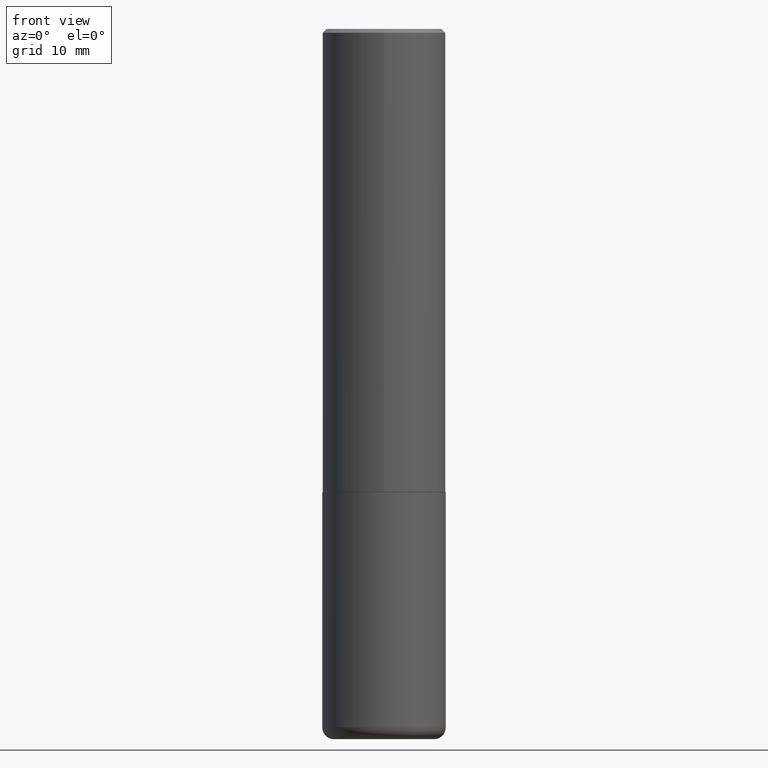
[diagram: clean part render]
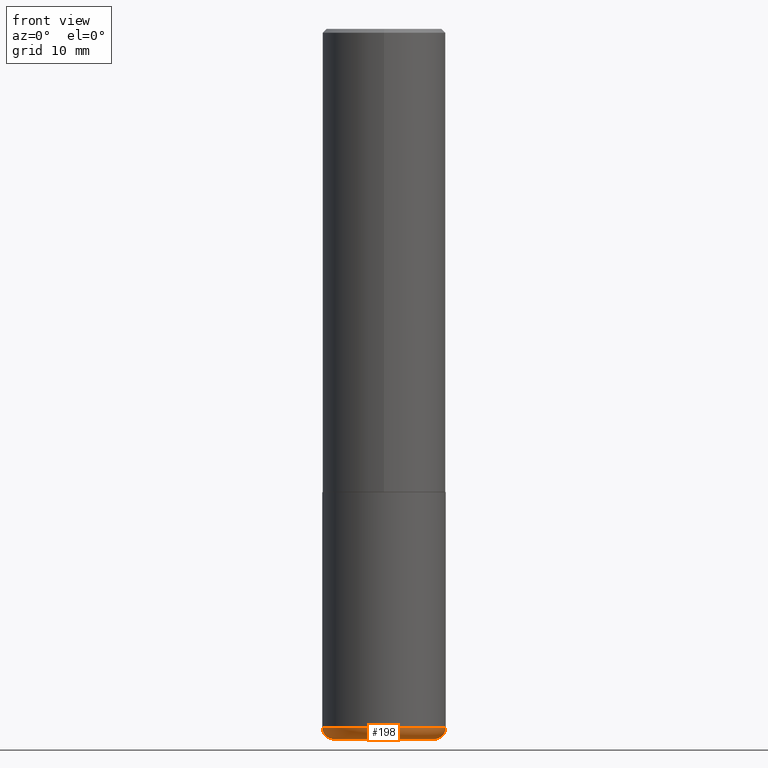
[diagram: same view with one face highlighted and labeled with its STEP entity id]
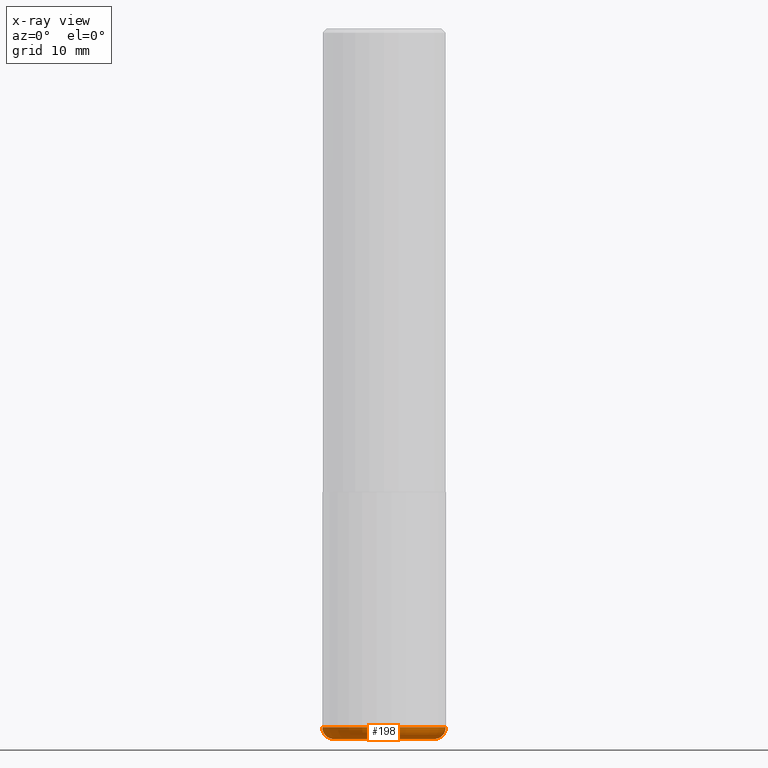
[diagram: x-ray of the same camera — body ghosted, the highlighted face saturated]
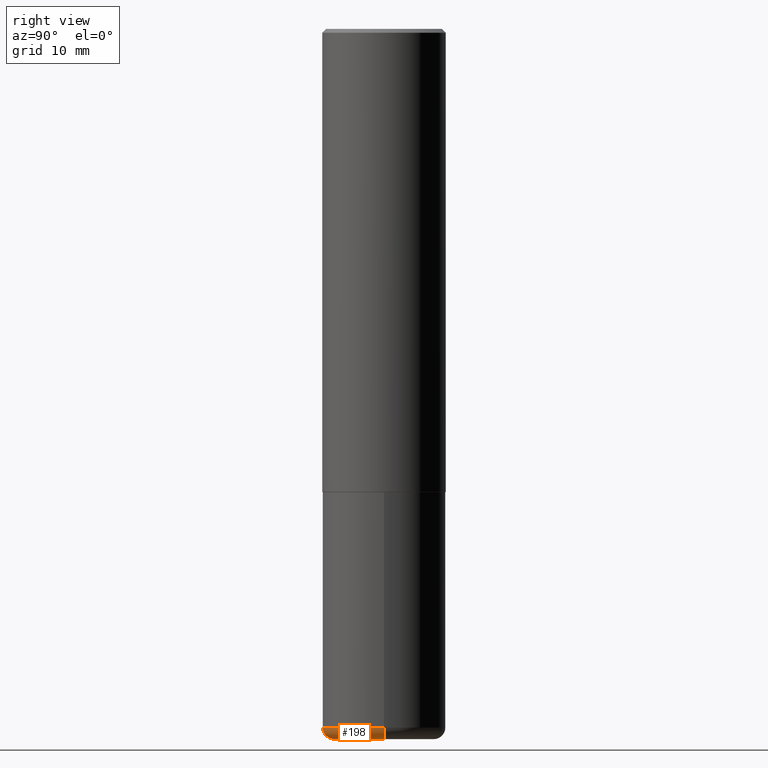
[diagram: same view with one face highlighted and labeled with its STEP entity id]
A machine part, front view. The second image highlights one B-rep face of the part: STEP entity #198.
The next image is the same camera in x-ray: the body ghosted, the highlighted face saturated — about 0% of this face is hidden behind the body in this view.
A second angle (right view) of the same face is appended — the face is thin or edge-on in the first view.
In plain terms, the highlighted toroidal blend (fillet) surface has major radius 6.4986 mm and minor (blend) radius 1.5011 mm.
Its self-contained STEP definition (entity closure, byte-faithful):
#7 = TOROIDAL_SURFACE ( 'NONE', #342, 0.2558500000000000218, 0.05909999999999999282 ) ;
#23 = AXIS2_PLACEMENT_3D ( 'NONE', #405, #279, #241 ) ;
#45 = VERTEX_POINT ( 'NONE', #332 ) ;
#82 = CARTESIAN_POINT ( 'NONE',  ( 8.857488016002564476E-29, -1.264614540928987199E-14, -3.621999999999999886 ) ) ;
#115 = CARTESIAN_POINT ( 'NONE',  ( -0.2558500000000000218, -1.051508316786773174E-14, -3.621999999999999886 ) ) ;
#116 = CARTESIAN_POINT ( 'NONE',  ( -0.3149500000000000077, -1.020194451588780718E-14, -3.562899999999999956 ) ) ;
#122 = VERTEX_POINT ( 'NONE', #116 ) ;
#123 = DIRECTION ( 'NONE',  ( -2.445468806185136597E-29, 3.491481338843145583E-15, 1.000000000000000000 ) ) ;
#144 = CARTESIAN_POINT ( 'NONE',  ( 0.3149500000000000077, -1.463908295750153462E-14, -3.562899999999999956 ) ) ;
#166 = DIRECTION ( 'NONE',  ( 7.105427357601001859E-15, 1.000000000000000000, -3.491481338843145583E-15 ) ) ;
#172 = DIRECTION ( 'NONE',  ( 1.000000000000000000, -6.982962677686269866E-15, 4.883557194083113462E-29 ) ) ;
#173 = EDGE_CURVE ( 'NONE', #122, #192, #222, .T. ) ;
#188 = CIRCLE ( 'NONE', #273, 0.05909999999999999282 ) ;
#192 = VERTEX_POINT ( 'NONE', #144 ) ;
#198 = ADVANCED_FACE ( 'NONE', ( #200 ), #7, .T. ) ;
#200 = FACE_OUTER_BOUND ( 'NONE', #311, .T. ) ;
#216 = ORIENTED_EDGE ( 'NONE', *, *, #308, .T. ) ;
#222 = CIRCLE ( 'NONE', #282, 0.3149500000000000632 ) ;
#224 = CARTESIAN_POINT ( 'NONE',  ( -0.2558500000000000218, -1.062187527272202748E-14, -3.562899999999999956 ) ) ;
#241 = DIRECTION ( 'NONE',  ( 1.000000000000000000, -6.982962677686262766E-15, 0.000000000000000000 ) ) ;
#249 = EDGE_CURVE ( 'NONE', #45, #192, #407, .T. ) ;
#250 = ORIENTED_EDGE ( 'NONE', *, *, #173, .F. ) ;
#267 = AXIS2_PLACEMENT_3D ( 'NONE', #82, #123, #274 ) ;
#273 = AXIS2_PLACEMENT_3D ( 'NONE', #224, #166, #376 ) ;
#274 = DIRECTION ( 'NONE',  ( 1.000000000000000000, -6.982962677686263555E-15, 0.000000000000000000 ) ) ;
#279 = DIRECTION ( 'NONE',  ( -6.982962677686266711E-15, -1.000000000000000000, 3.491481338843145583E-15 ) ) ;
#282 = AXIS2_PLACEMENT_3D ( 'NONE', #351, #317, #399 ) ;
#287 = ORIENTED_EDGE ( 'NONE', *, *, #249, .T. ) ;
#299 = VERTEX_POINT ( 'NONE', #115 ) ;
#308 = EDGE_CURVE ( 'NONE', #299, #45, #378, .T. ) ;
#311 = EDGE_LOOP ( 'NONE', ( #315, #216, #287, #250 ) ) ;
#315 = ORIENTED_EDGE ( 'NONE', *, *, #331, .F. ) ;
#317 = DIRECTION ( 'NONE',  ( -2.445468806185136597E-29, 3.491481338843145583E-15, 1.000000000000000000 ) ) ;
#331 = EDGE_CURVE ( 'NONE', #299, #122, #188, .T. ) ;
#332 = CARTESIAN_POINT ( 'NONE',  ( 0.2558500000000000218, -1.443273641037590422E-14, -3.621999999999999886 ) ) ;
#342 = AXIS2_PLACEMENT_3D ( 'NONE', #383, #393, #172 ) ;
#351 = CARTESIAN_POINT ( 'NONE',  ( 8.712960809557023143E-29, -1.243979886216424317E-14, -3.562899999999999956 ) ) ;
#376 = DIRECTION ( 'NONE',  ( -1.000000000000000000, 7.105427357600993181E-15, 0.000000000000000000 ) ) ;
#378 = CIRCLE ( 'NONE', #267, 0.2558500000000000218 ) ;
#383 = CARTESIAN_POINT ( 'NONE',  ( 8.712960809557023143E-29, -1.243979886216424317E-14, -3.562899999999999956 ) ) ;
#393 = DIRECTION ( 'NONE',  ( -2.445468806185136597E-29, 3.491481338843145583E-15, 1.000000000000000000 ) ) ;
#399 = DIRECTION ( 'NONE',  ( 1.000000000000000000, -6.982962677686268288E-15, 0.000000000000000000 ) ) ;
#405 = CARTESIAN_POINT ( 'NONE',  ( 0.2558500000000000218, -1.422638986325027382E-14, -3.562899999999999956 ) ) ;
#407 = CIRCLE ( 'NONE', #23, 0.05909999999999999282 ) ;